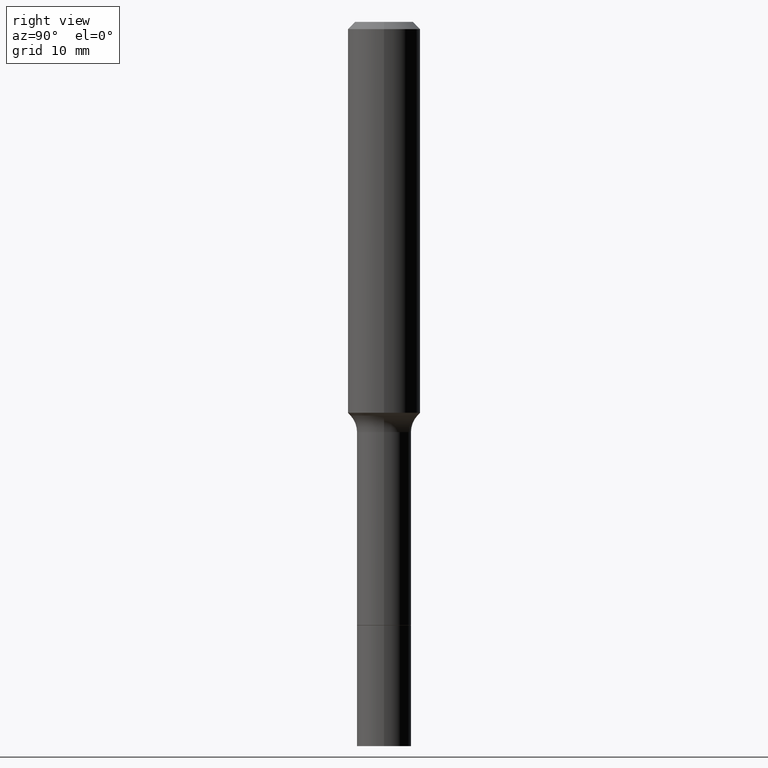
[diagram: clean part render]
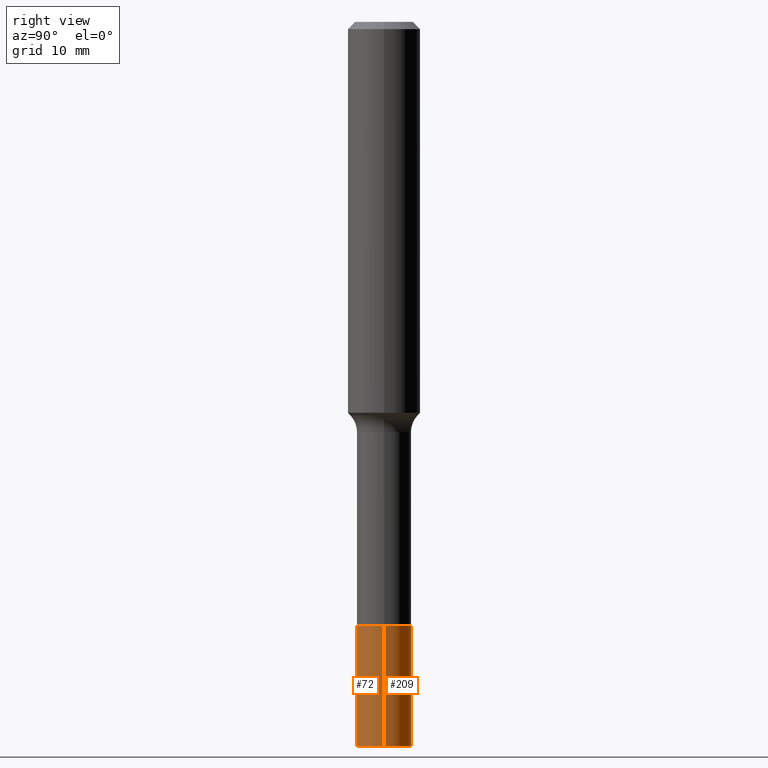
[diagram: same view with one multi-face feature highlighted, each face labeled with its STEP entity id]
A machine part, right view. The highlighted faces form ONE feature: a constant-radius fillet chain: 2 tangent blend faces with common blend radius 2.2504 mm. The faces share edges in the B-rep.
Their STEP definitions:
[1] entity #72 (Cylinder):
#17 = EDGE_CURVE ( 'NONE', #411, #164, #513, .T. ) ;
#19 = ORIENTED_EDGE ( 'NONE', *, *, #249, .F. ) ;
#23 = CARTESIAN_POINT ( 'NONE',  ( -0.08860000000000010922, -6.930214530979727604E-15, -2.362200000000000077 ) ) ;
#25 = FACE_OUTER_BOUND ( 'NONE', #501, .T. ) ;
#41 = EDGE_CURVE ( 'NONE', #447, #158, #143, .T. ) ;
#53 = DIRECTION ( 'NONE',  ( -2.445468806185136597E-29, 3.491481338843145583E-15, 1.000000000000000000 ) ) ;
#55 = AXIS2_PLACEMENT_3D ( 'NONE', #177, #112, #385 ) ;
#66 = CARTESIAN_POINT ( 'NONE',  ( 4.813171704333585481E-29, -6.871933571111078805E-15, -1.968199999999999950 ) ) ;
#72 = ADVANCED_FACE ( 'NONE', ( #25 ), #428, .T. ) ;
#89 = ORIENTED_EDGE ( 'NONE', *, *, #17, .F. ) ;
#112 = DIRECTION ( 'NONE',  ( -2.445468806185136597E-29, 3.491481338843145583E-15, 1.000000000000000000 ) ) ;
#143 = LINE ( 'NONE', #260, #261 ) ;
#158 = VERTEX_POINT ( 'NONE', #515 ) ;
#164 = VERTEX_POINT ( 'NONE', #311 ) ;
#177 = CARTESIAN_POINT ( 'NONE',  ( 4.813171704333585481E-29, -6.871933571111078805E-15, -1.968199999999999950 ) ) ;
#179 = CIRCLE ( 'NONE', #387, 0.08860000000000013698 ) ;
#217 = DIRECTION ( 'NONE',  ( -2.445468806185136877E-29, 3.491481338843145188E-15, 1.000000000000000000 ) ) ;
#222 = DIRECTION ( 'NONE',  ( -2.445468806185136597E-29, 3.491481338843145583E-15, 1.000000000000000000 ) ) ;
#249 = EDGE_CURVE ( 'NONE', #164, #158, #307, .T. ) ;
#259 = CARTESIAN_POINT ( 'NONE',  ( 0.08860000000000013698, -8.866267711858282579E-15, -2.362200000000000077 ) ) ;
#260 = CARTESIAN_POINT ( 'NONE',  ( 0.08860000000000006759, -7.490624064354082547E-15, -1.968199999999999950 ) ) ;
#261 = VECTOR ( 'NONE', #297, 39.37007874015748143 ) ;
#287 = ORIENTED_EDGE ( 'NONE', *, *, #41, .T. ) ;
#294 = DIRECTION ( 'NONE',  ( 1.000000000000000000, -6.982962677686258033E-15, 0.000000000000000000 ) ) ;
#297 = DIRECTION ( 'NONE',  ( -2.445468806185136877E-29, 3.491481338843145188E-15, 1.000000000000000000 ) ) ;
#307 = CIRCLE ( 'NONE', #404, 0.08859999999999999820 ) ;
#311 = CARTESIAN_POINT ( 'NONE',  ( -0.08859999999999999820, -6.930214530979729182E-15, -1.968199999999999950 ) ) ;
#362 = ORIENTED_EDGE ( 'NONE', *, *, #409, .T. ) ;
#366 = VECTOR ( 'NONE', #217, 39.37007874015748143 ) ;
#384 = DIRECTION ( 'NONE',  ( 1.000000000000000000, -6.982962677686269077E-15, 0.000000000000000000 ) ) ;
#385 = DIRECTION ( 'NONE',  ( 1.000000000000000000, -6.982962677686263555E-15, 0.000000000000000000 ) ) ;
#387 = AXIS2_PLACEMENT_3D ( 'NONE', #510, #53, #294 ) ;
#404 = AXIS2_PLACEMENT_3D ( 'NONE', #66, #222, #384 ) ;
#409 = EDGE_CURVE ( 'NONE', #411, #447, #179, .T. ) ;
#411 = VERTEX_POINT ( 'NONE', #23 ) ;
#413 = CARTESIAN_POINT ( 'NONE',  ( -0.08860000000000006759, -6.242392707227629166E-15, -1.968199999999999950 ) ) ;
#428 = CYLINDRICAL_SURFACE ( 'NONE', #55, 0.08860000000000006759 ) ;
#447 = VERTEX_POINT ( 'NONE', #259 ) ;
#501 = EDGE_LOOP ( 'NONE', ( #89, #362, #287, #19 ) ) ;
#510 = CARTESIAN_POINT ( 'NONE',  ( 5.776686413970529753E-29, -8.247577218615279626E-15, -2.362200000000000077 ) ) ;
#513 = LINE ( 'NONE', #413, #366 ) ;
#515 = CARTESIAN_POINT ( 'NONE',  ( 0.08859999999999999820, -7.490624064354082547E-15, -1.968199999999999950 ) ) ;
[2] entity #209 (Cylinder):
#2 = AXIS2_PLACEMENT_3D ( 'NONE', #116, #88, #496 ) ;
#17 = EDGE_CURVE ( 'NONE', #411, #164, #513, .T. ) ;
#23 = CARTESIAN_POINT ( 'NONE',  ( -0.08860000000000010922, -6.930214530979727604E-15, -2.362200000000000077 ) ) ;
#30 = CARTESIAN_POINT ( 'NONE',  ( 4.813171704333585481E-29, -6.871933571111078805E-15, -1.968199999999999950 ) ) ;
#34 = DIRECTION ( 'NONE',  ( -2.445468806185136597E-29, 3.491481338843145583E-15, 1.000000000000000000 ) ) ;
#41 = EDGE_CURVE ( 'NONE', #447, #158, #143, .T. ) ;
#77 = CIRCLE ( 'NONE', #153, 0.08859999999999999820 ) ;
#87 = ORIENTED_EDGE ( 'NONE', *, *, #257, .T. ) ;
#88 = DIRECTION ( 'NONE',  ( -2.445468806185136597E-29, 3.491481338843145583E-15, 1.000000000000000000 ) ) ;
#116 = CARTESIAN_POINT ( 'NONE',  ( 5.776686413970529753E-29, -8.247577218615279626E-15, -2.362200000000000077 ) ) ;
#125 = ORIENTED_EDGE ( 'NONE', *, *, #17, .T. ) ;
#143 = LINE ( 'NONE', #260, #261 ) ;
#149 = FACE_OUTER_BOUND ( 'NONE', #206, .T. ) ;
#153 = AXIS2_PLACEMENT_3D ( 'NONE', #219, #210, #505 ) ;
#158 = VERTEX_POINT ( 'NONE', #515 ) ;
#164 = VERTEX_POINT ( 'NONE', #311 ) ;
#206 = EDGE_LOOP ( 'NONE', ( #87, #125, #408, #368 ) ) ;
#209 = ADVANCED_FACE ( 'NONE', ( #149 ), #517, .T. ) ;
#210 = DIRECTION ( 'NONE',  ( -2.445468806185136597E-29, 3.491481338843145583E-15, 1.000000000000000000 ) ) ;
#217 = DIRECTION ( 'NONE',  ( -2.445468806185136877E-29, 3.491481338843145188E-15, 1.000000000000000000 ) ) ;
#219 = CARTESIAN_POINT ( 'NONE',  ( 4.813171704333585481E-29, -6.871933571111078805E-15, -1.968199999999999950 ) ) ;
#257 = EDGE_CURVE ( 'NONE', #447, #411, #514, .T. ) ;
#259 = CARTESIAN_POINT ( 'NONE',  ( 0.08860000000000013698, -8.866267711858282579E-15, -2.362200000000000077 ) ) ;
#260 = CARTESIAN_POINT ( 'NONE',  ( 0.08860000000000006759, -7.490624064354082547E-15, -1.968199999999999950 ) ) ;
#261 = VECTOR ( 'NONE', #297, 39.37007874015748143 ) ;
#266 = AXIS2_PLACEMENT_3D ( 'NONE', #30, #34, #305 ) ;
#297 = DIRECTION ( 'NONE',  ( -2.445468806185136877E-29, 3.491481338843145188E-15, 1.000000000000000000 ) ) ;
#305 = DIRECTION ( 'NONE',  ( 1.000000000000000000, -6.982962677686263555E-15, 0.000000000000000000 ) ) ;
#311 = CARTESIAN_POINT ( 'NONE',  ( -0.08859999999999999820, -6.930214530979729182E-15, -1.968199999999999950 ) ) ;
#366 = VECTOR ( 'NONE', #217, 39.37007874015748143 ) ;
#368 = ORIENTED_EDGE ( 'NONE', *, *, #41, .F. ) ;
#408 = ORIENTED_EDGE ( 'NONE', *, *, #480, .F. ) ;
#411 = VERTEX_POINT ( 'NONE', #23 ) ;
#413 = CARTESIAN_POINT ( 'NONE',  ( -0.08860000000000006759, -6.242392707227629166E-15, -1.968199999999999950 ) ) ;
#447 = VERTEX_POINT ( 'NONE', #259 ) ;
#480 = EDGE_CURVE ( 'NONE', #158, #164, #77, .T. ) ;
#496 = DIRECTION ( 'NONE',  ( 1.000000000000000000, -6.982962677686258033E-15, 0.000000000000000000 ) ) ;
#505 = DIRECTION ( 'NONE',  ( 1.000000000000000000, -6.982962677686269077E-15, 0.000000000000000000 ) ) ;
#513 = LINE ( 'NONE', #413, #366 ) ;
#514 = CIRCLE ( 'NONE', #2, 0.08860000000000013698 ) ;
#515 = CARTESIAN_POINT ( 'NONE',  ( 0.08859999999999999820, -7.490624064354082547E-15, -1.968199999999999950 ) ) ;
#517 = CYLINDRICAL_SURFACE ( 'NONE', #266, 0.08860000000000006759 ) ;